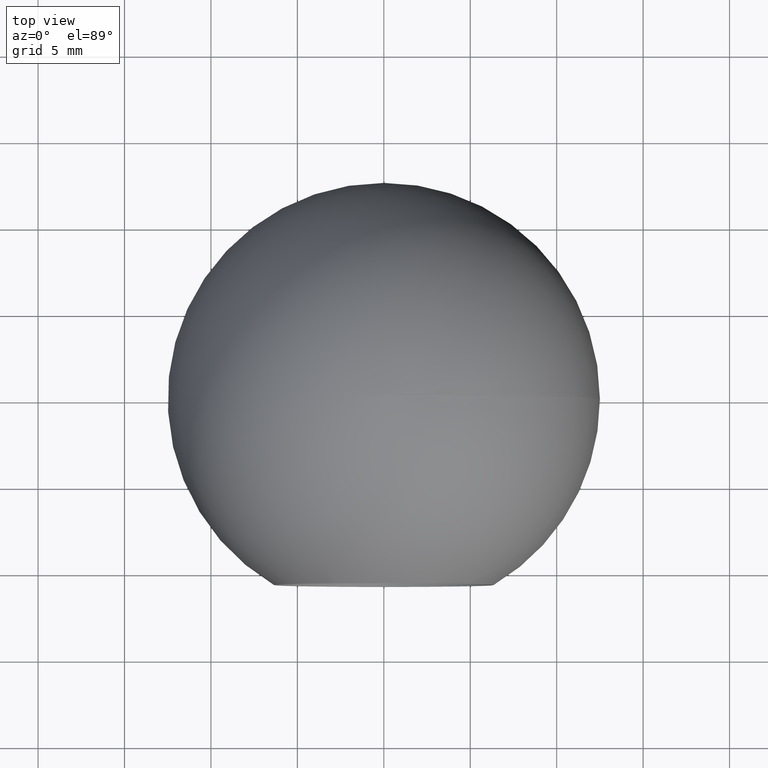
[diagram: clean part render]
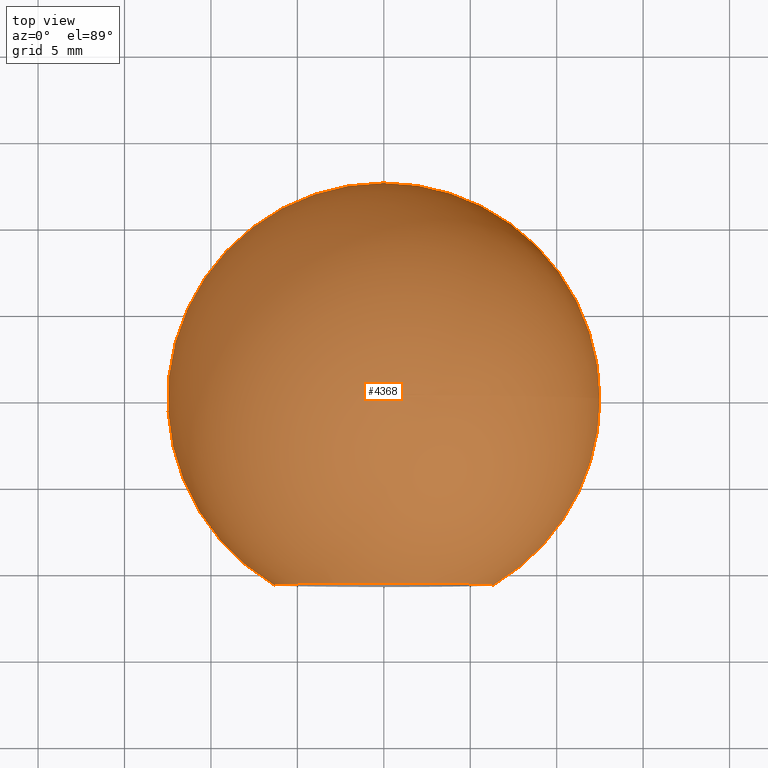
[diagram: same view with one face highlighted and labeled with its STEP entity id]
A machine part, top view. The second image highlights one B-rep face of the part: STEP entity #4368.
In plain terms, the highlighted spherical surface has radius 12.5 mm.
Its self-contained STEP definition (entity closure, byte-faithful):
#694 = DIRECTION ( 'NONE',  ( -3.795949471969979100E-019, -1.000000000000000000, -0.0000000000000000000 ) ) ;
#718 = EDGE_CURVE ( 'NONE', #8290, #7481, #6293, .T. ) ;
#825 = ORIENTED_EDGE ( 'NONE', *, *, #6221, .F. ) ;
#1115 = AXIS2_PLACEMENT_3D ( 'NONE', #3315, #694, #4141 ) ;
#2212 = EDGE_LOOP ( 'NONE', ( #825, #3701, #5309 ) ) ;
#2455 = CARTESIAN_POINT ( 'NONE',  ( 6.350000000000000500, -10.76696336020514100, 0.0000000000000000000 ) ) ;
#2478 = DIRECTION ( 'NONE',  ( 0.0000000000000000000, 0.0000000000000000000, -1.000000000000000000 ) ) ;
#2480 = CIRCLE ( 'NONE', #7596, 12.50000000000000000 ) ;
#2691 = DIRECTION ( 'NONE',  ( -0.0000000000000000000, 0.0000000000000000000, 1.000000000000000000 ) ) ;
#3003 = EDGE_CURVE ( 'NONE', #3851, #7481, #7112, .T. ) ;
#3315 = CARTESIAN_POINT ( 'NONE',  ( -8.832021728151556100E-018, -10.76696336020514100, 0.0000000000000000000 ) ) ;
#3358 = DIRECTION ( 'NONE',  ( -1.000000000000000000, 0.0000000000000000000, 0.0000000000000000000 ) ) ;
#3701 = ORIENTED_EDGE ( 'NONE', *, *, #3003, .T. ) ;
#3851 = VERTEX_POINT ( 'NONE', #7055 ) ;
#3940 = CARTESIAN_POINT ( 'NONE',  ( 0.0000000000000000000, 0.0000000000000000000, 0.0000000000000000000 ) ) ;
#4141 = DIRECTION ( 'NONE',  ( 1.000000000000000000, 0.0000000000000000000, 0.0000000000000000000 ) ) ;
#4368 = ADVANCED_FACE ( 'NONE', ( #8070 ), #10647, .T. ) ;
#5093 = CARTESIAN_POINT ( 'NONE',  ( -6.350000000000000500, -10.76696336020514100, 7.776507174585693100E-016 ) ) ;
#5309 = ORIENTED_EDGE ( 'NONE', *, *, #718, .F. ) ;
#6221 = EDGE_CURVE ( 'NONE', #3851, #8290, #2480, .T. ) ;
#6293 = CIRCLE ( 'NONE', #1115, 6.350000000000000500 ) ;
#7055 = CARTESIAN_POINT ( 'NONE',  ( 7.701491863070581600E-016, 12.50000000000000000, 0.0000000000000000000 ) ) ;
#7112 = CIRCLE ( 'NONE', #7436, 12.50000000000000000 ) ;
#7436 = AXIS2_PLACEMENT_3D ( 'NONE', #3940, #11090, #9226 ) ;
#7481 = VERTEX_POINT ( 'NONE', #5093 ) ;
#7596 = AXIS2_PLACEMENT_3D ( 'NONE', #11556, #2478, #3358 ) ;
#8070 = FACE_OUTER_BOUND ( 'NONE', #2212, .T. ) ;
#8290 = VERTEX_POINT ( 'NONE', #2455 ) ;
#8929 = DIRECTION ( 'NONE',  ( 1.000000000000000000, -3.795949471969979500E-019, 0.0000000000000000000 ) ) ;
#9226 = DIRECTION ( 'NONE',  ( 1.000000000000000000, 0.0000000000000000000, -1.224646799147353200E-016 ) ) ;
#9812 = CARTESIAN_POINT ( 'NONE',  ( 0.0000000000000000000, 0.0000000000000000000, 0.0000000000000000000 ) ) ;
#9922 = AXIS2_PLACEMENT_3D ( 'NONE', #9812, #2691, #8929 ) ;
#10647 = SPHERICAL_SURFACE ( 'NONE', #9922, 12.50000000000000000 ) ;
#11090 = DIRECTION ( 'NONE',  ( 1.224646799147353200E-016, -4.648697370573120600E-035, 1.000000000000000000 ) ) ;
#11556 = CARTESIAN_POINT ( 'NONE',  ( 0.0000000000000000000, 0.0000000000000000000, 0.0000000000000000000 ) ) ;